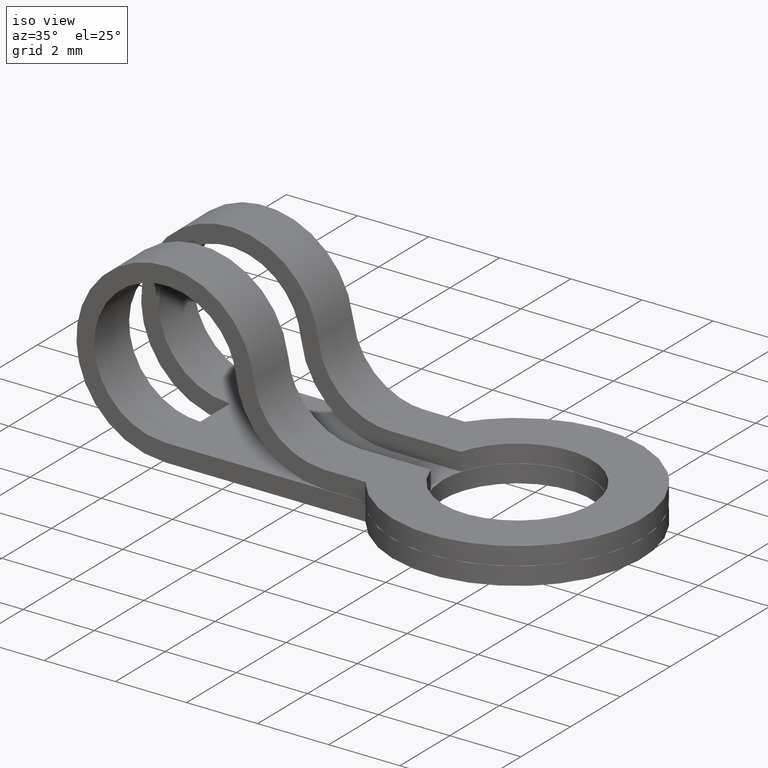
[diagram: clean part render]
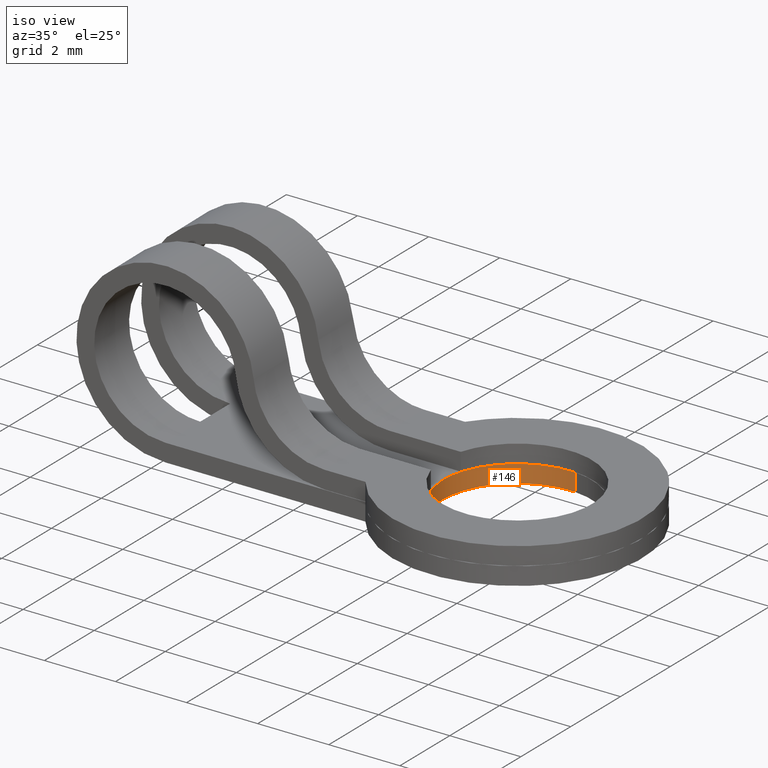
[diagram: same view with one face highlighted and labeled with its STEP entity id]
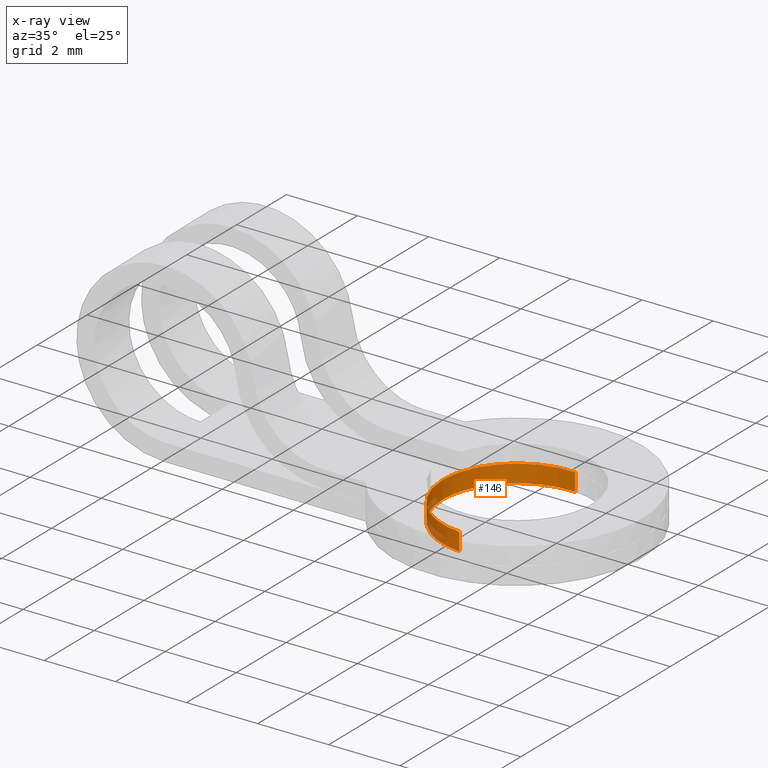
[diagram: x-ray of the same camera — body ghosted, the highlighted face saturated]
A machine part, iso view. The second image highlights one B-rep face of the part: STEP entity #146.
The next image is the same camera in x-ray: the body ghosted, the highlighted face saturated — about 7% of this face is hidden behind the body in this view.
In plain terms, the highlighted face is a freeform B-spline surface patch.
Its self-contained STEP definition (entity closure, byte-faithful):
#44=CARTESIAN_POINT('',(8.764673983598133,-2.095843228345329,-1.987500000000001));
#45=CARTESIAN_POINT('',(8.749997931695141,-2.094688198011118,-1.987500000000002));
#46=CARTESIAN_POINT('',(6.641709498131956,-1.928762299811092,-1.987500000000001));
#47=CARTESIAN_POINT('',(6.806473599160432,0.164764101028476,-1.987500000000001));
#48=CARTESIAN_POINT('',(6.971237700188908,2.258290501868045,-1.987500000000001));
#49=CARTESIAN_POINT('',(9.079522560904504,2.092364884857223,-1.987500000000002));
#50=CARTESIAN_POINT('',(9.094195081514092,2.091210132441827,-1.987500000000001));
#51=CARTESIAN_POINT('',(8.764673983598133,-2.095843228345329,-2.512812499999944));
#52=CARTESIAN_POINT('',(8.749997931695141,-2.094688198011118,-2.512812499999944));
#53=CARTESIAN_POINT('',(6.641709498131956,-1.928762299811092,-2.512812499999944));
#54=CARTESIAN_POINT('',(6.806473599160432,0.164764101028476,-2.512812499999944));
#55=CARTESIAN_POINT('',(6.971237700188908,2.258290501868045,-2.512812499999944));
#56=CARTESIAN_POINT('',(9.079522560904504,2.092364884857223,-2.512812499999944));
#57=CARTESIAN_POINT('',(9.094195081514092,2.091210132441827,-2.512812499999944));
#65=(BOUNDED_SURFACE()B_SPLINE_SURFACE(2,1,((#44,#51),(#45,#52),(#46,#53),(#47,#54),(#48,#55),(#49,#56),(#50,#57)),.UNSPECIFIED.,.F.,.F.,.U.)B_SPLINE_SURFACE_WITH_KNOTS((3,1,2,1,3),(2,2),(0.0,0.034798188395063,3.514192112329061,6.993586036263059,7.028375777804495),(0.0,1.0),.UNSPECIFIED.)GEOMETRIC_REPRESENTATION_ITEM()RATIONAL_B_SPLINE_SURFACE(((1.005858579758847,1.005858579758847),(1.002929289879423,1.002929289879423),(0.707106781186548,0.707106781186548),(1.0,1.0),(0.707106781186548,0.707106781186548),(1.002928578828533,1.002928578828533),(1.005857157657066,1.005857157657066)))REPRESENTATION_ITEM('')SURFACE());
#66=CARTESIAN_POINT('',(6.800000000000001,0.0,-2.499999999999945));
#67=VERTEX_POINT('',#66);
#68=CARTESIAN_POINT('',(8.735239515111395,-2.093526685429664,-2.500000000000134));
#69=VERTEX_POINT('',#68);
#70=CARTESIAN_POINT('',(6.800000000000001,0.0,-2.499999999999945));
#71=CARTESIAN_POINT('',(6.800000000000002,-1.941223395914477,-2.499999999999945));
#72=CARTESIAN_POINT('',(8.735239515111395,-2.093526685429664,-2.500000000000134));
#80=(BOUNDED_CURVE()B_SPLINE_CURVE(2,(#70,#71,#72),.UNSPECIFIED.,.F.,.U.)B_SPLINE_CURVE_WITH_KNOTS((3,3),(0.0,0.236331596733665),.UNSPECIFIED.)CURVE()GEOMETRIC_REPRESENTATION_ITEM()RATIONAL_B_SPLINE_CURVE((1.0,0.723120311701417,0.969723974112622))REPRESENTATION_ITEM(''));
#81=EDGE_CURVE('',#67,#69,#80,.T.);
#82=ORIENTED_EDGE('',*,*,#81,.F.);
#83=CARTESIAN_POINT('',(9.064760484888607,2.093526685429664,-2.500000000000134));
#84=VERTEX_POINT('',#83);
#85=CARTESIAN_POINT('',(9.064760484888607,2.093526685429664,-2.500000000000135));
#86=CARTESIAN_POINT('',(8.982507408255799,2.100000000000000,-2.499999999999945));
#87=CARTESIAN_POINT('',(8.900000000000000,2.100000000000000,-2.499999999999945));
#88=CARTESIAN_POINT('',(6.800000000000002,2.100000000000000,-2.499999999999945));
#89=CARTESIAN_POINT('',(6.800000000000001,0.0,-2.499999999999945));
#97=(BOUNDED_CURVE()B_SPLINE_CURVE(2,(#85,#86,#87,#88,#89),.UNSPECIFIED.,.F.,.U.)B_SPLINE_CURVE_WITH_KNOTS((3,2,3),(0.736331596733665,0.750000000000000,1.0),.UNSPECIFIED.)CURVE()GEOMETRIC_REPRESENTATION_ITEM()RATIONAL_B_SPLINE_CURVE((0.969723974112622,0.983986469485131,1.0,0.707106781186548,1.0))REPRESENTATION_ITEM(''));
#98=EDGE_CURVE('',#84,#67,#97,.T.);
#99=ORIENTED_EDGE('',*,*,#98,.F.);
#100=CARTESIAN_POINT('',(9.064760529551007,2.093526681914811,-2.0));
#101=VERTEX_POINT('',#100);
#102=CARTESIAN_POINT('',(9.064760529551007,2.093526681914811,-2.0));
#103=CARTESIAN_POINT('',(9.064760484888607,2.093526685429664,-2.500000000000134));
#104=QUASI_UNIFORM_CURVE('',1,(#102,#103),.UNSPECIFIED.,.F.,.U.);
#105=EDGE_CURVE('',#101,#84,#104,.T.);
#106=ORIENTED_EDGE('',*,*,#105,.F.);
#107=CARTESIAN_POINT('',(6.800000000000001,0.0,-2.0));
#108=VERTEX_POINT('',#107);
#109=CARTESIAN_POINT('',(9.064760529551007,2.093526681914811,-2.000000000000000));
#110=CARTESIAN_POINT('',(8.982507430690625,2.100000000000001,-2.000000000000000));
#111=CARTESIAN_POINT('',(8.900000000000000,2.100000000000000,-2.0));
#112=CARTESIAN_POINT('',(6.800000000000002,2.100000000000000,-2.000000000000000));
#113=CARTESIAN_POINT('',(6.800000000000001,0.0,-2.0));
#121=(BOUNDED_CURVE()B_SPLINE_CURVE(2,(#109,#110,#111,#112,#113),.UNSPECIFIED.,.F.,.U.)B_SPLINE_CURVE_WITH_KNOTS((3,2,3),(0.736331593076566,0.750000000000000,1.0),.UNSPECIFIED.)CURVE()GEOMETRIC_REPRESENTATION_ITEM()RATIONAL_B_SPLINE_CURVE((0.969723966480516,0.983986465200574,1.0,0.707106781186548,1.0))REPRESENTATION_ITEM(''));
#122=EDGE_CURVE('',#101,#108,#121,.T.);
#123=ORIENTED_EDGE('',*,*,#122,.T.);
#124=CARTESIAN_POINT('',(8.735239470448992,-2.093526681914811,-2.0));
#125=VERTEX_POINT('',#124);
#126=CARTESIAN_POINT('',(6.800000000000001,0.0,-2.0));
#127=CARTESIAN_POINT('',(6.800000000000002,-1.941223354373200,-2.0));
#128=CARTESIAN_POINT('',(8.735239470448992,-2.093526681914811,-2.000000000000000));
#136=(BOUNDED_CURVE()B_SPLINE_CURVE(2,(#126,#127,#128),.UNSPECIFIED.,.F.,.U.)B_SPLINE_CURVE_WITH_KNOTS((3,3),(0.0,0.236331593076566),.UNSPECIFIED.)CURVE()GEOMETRIC_REPRESENTATION_ITEM()RATIONAL_B_SPLINE_CURVE((1.0,0.723120315985974,0.969723966480516))REPRESENTATION_ITEM(''));
#137=EDGE_CURVE('',#108,#125,#136,.T.);
#138=ORIENTED_EDGE('',*,*,#137,.T.);
#139=CARTESIAN_POINT('',(8.735239470448992,-2.093526681914811,-2.0));
#140=CARTESIAN_POINT('',(8.735239515111395,-2.093526685429664,-2.500000000000134));
#141=QUASI_UNIFORM_CURVE('',1,(#139,#140),.UNSPECIFIED.,.F.,.U.);
#142=EDGE_CURVE('',#125,#69,#141,.T.);
#143=ORIENTED_EDGE('',*,*,#142,.T.);
#144=EDGE_LOOP('',(#82,#99,#106,#123,#138,#143));
#145=FACE_OUTER_BOUND('',#144,.T.);
#146=ADVANCED_FACE('',(#145),#65,.F.);